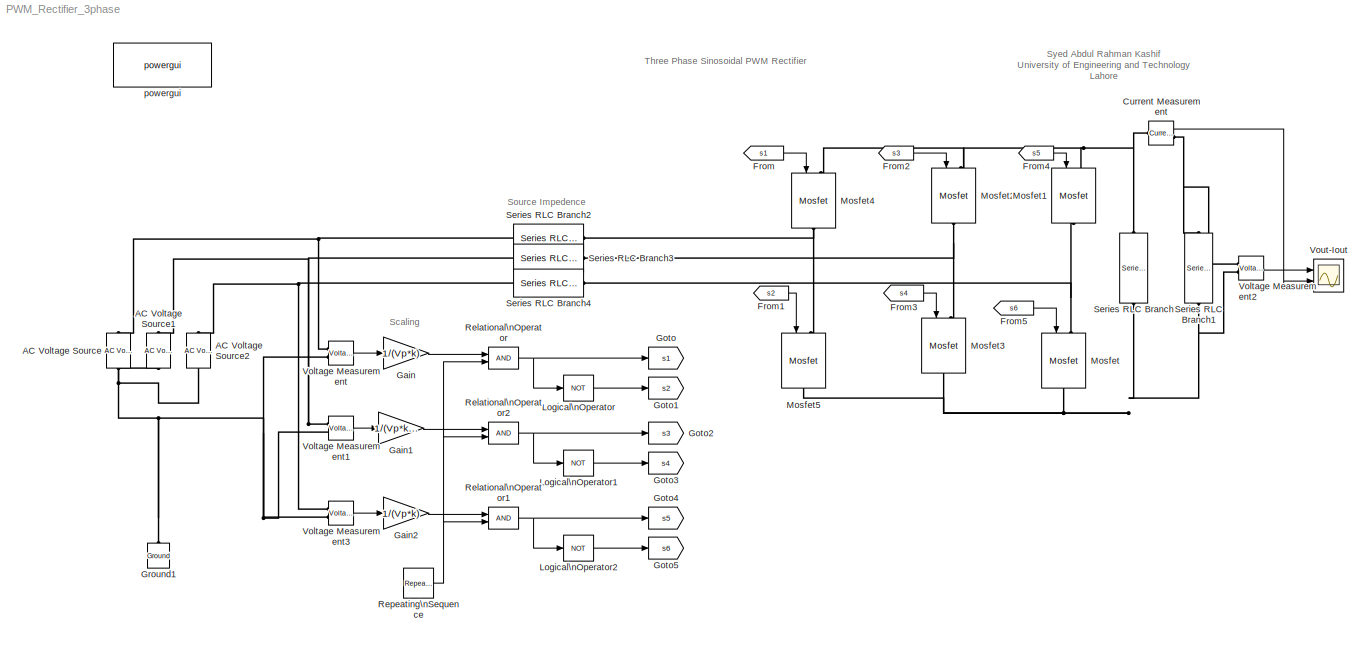
MODEL PWM_Rectifier_3phase
KIND model
CONFIG InitFcn = clear;\nclc;\nf=50;\nVp=110;\nfs=10e3;\nk=1.2;
BLOCK [Reference] AC Voltage Source  REF=powerlib/Electrical\nSources/AC Voltage Source
  Amplitude = Vp
  DialogController = POWERSYS.PowerSysDialog
  Frequency = f
  FunctionWithSeparateData = off
  Measurements = None
  Phase = 0
  Ports = [0, 0, 0, 0, 0, 1, 1]
  RTWMemSecDataConstants = Inherit from model
  RTWMemSecDataInternal = Inherit from model
  RTWMemSecDataParameters = Inherit from model
  RTWMemSecFuncExecute = Inherit from model
  RTWMemSecFuncInitTerm = Inherit from model
  SID = 102
  SampleTime = 0
  ShowPortLabels = FromPortIcon
  SourceBlock = powerlib/Electrical\nSources/AC Voltage Source
  SourceType = AC Voltage Source
  SystemSampleTime = -1
BLOCK [Reference] AC Voltage Source1  REF=powerlib/Electrical\nSources/AC Voltage Source
  Amplitude = Vp
  DialogController = POWERSYS.PowerSysDialog
  Frequency = f
  FunctionWithSeparateData = off
  Measurements = None
  Phase = 240
  Ports = [0, 0, 0, 0, 0, 1, 1]
  RTWMemSecDataConstants = Inherit from model
  RTWMemSecDataInternal = Inherit from model
  RTWMemSecDataParameters = Inherit from model
  RTWMemSecFuncExecute = Inherit from model
  RTWMemSecFuncInitTerm = Inherit from model
  SID = 103
  SampleTime = 0
  ShowPortLabels = FromPortIcon
  SourceBlock = powerlib/Electrical\nSources/AC Voltage Source
  SourceType = AC Voltage Source
  SystemSampleTime = -1
BLOCK [Reference] AC Voltage Source2  REF=powerlib/Electrical\nSources/AC Voltage Source
  Amplitude = Vp
  DialogController = POWERSYS.PowerSysDialog
  Frequency = f
  FunctionWithSeparateData = off
  Measurements = None
  Phase = 120
  Ports = [0, 0, 0, 0, 0, 1, 1]
  RTWMemSecDataConstants = Inherit from model
  RTWMemSecDataInternal = Inherit from model
  RTWMemSecDataParameters = Inherit from model
  RTWMemSecFuncExecute = Inherit from model
  RTWMemSecFuncInitTerm = Inherit from model
  SID = 104
  SampleTime = 0
  ShowPortLabels = FromPortIcon
  SourceBlock = powerlib/Electrical\nSources/AC Voltage Source
  SourceType = AC Voltage Source
  SystemSampleTime = -1
BLOCK [Reference] Current Measurement  REF=powerlib/Measurements/Current Measurement
  DialogController = POWERSYS.PowerSysDialog
  FunctionWithSeparateData = off
  OutputType = Complex
  PSBequivalent = 0
  PhasorSimulation = off
  Ports = [0, 1, 0, 0, 0, 1, 1]
  RTWMemSecDataConstants = Inherit from model
  RTWMemSecDataInternal = Inherit from model
  RTWMemSecDataParameters = Inherit from model
  RTWMemSecFuncExecute = Inherit from model
  RTWMemSecFuncInitTerm = Inherit from model
  SID = 134
  ShowPortLabels = FromPortIcon
  SourceBlock = powerlib/Measurements/Current Measurement
  SourceType = Current Measurement
  SystemSampleTime = -1
BLOCK [From] From
  CloseFcn = tagdialog Close
  GotoTag = s1
  SID = 41
BLOCK [From] From1
  CloseFcn = tagdialog Close
  GotoTag = s2
  SID = 42
BLOCK [From] From2
  CloseFcn = tagdialog Close
  GotoTag = s3
  SID = 43
BLOCK [From] From3
  CloseFcn = tagdialog Close
  GotoTag = s4
  SID = 44
BLOCK [From] From4
  CloseFcn = tagdialog Close
  GotoTag = s5
  SID = 45
BLOCK [From] From5
  CloseFcn = tagdialog Close
  GotoTag = s6
  SID = 46
BLOCK [Gain] Gain
  Gain = 1/(Vp*k)
  OutDataType = fixdt(1, 16)
  OutDataTypeMode = Inherit via internal rule
  OutDataTypeStr = Inherit: Inherit via internal rule
  OutScaling = 2^0
  ParamDataTypeStr = Inherit: Inherit via internal rule
  ParameterDataType = fixdt(1, 16)
  ParameterDataTypeMode = Inherit via internal rule
  ParameterScaling = 2^0
  SID = 126
  SaturateOnIntegerOverflow = off
BLOCK [Gain] Gain1
  Gain = 1/(Vp*k)
  OutDataType = fixdt(1, 16)
  OutDataTypeMode = Inherit via internal rule
  OutDataTypeStr = Inherit: Inherit via internal rule
  OutScaling = 2^0
  ParamDataTypeStr = Inherit: Inherit via internal rule
  ParameterDataType = fixdt(1, 16)
  ParameterDataTypeMode = Inherit via internal rule
  ParameterScaling = 2^0
  SID = 127
  SaturateOnIntegerOverflow = off
BLOCK [Gain] Gain2
  Gain = 1/(Vp*k)
  OutDataType = fixdt(1, 16)
  OutDataTypeMode = Inherit via internal rule
  OutDataTypeStr = Inherit: Inherit via internal rule
  OutScaling = 2^0
  ParamDataTypeStr = Inherit: Inherit via internal rule
  ParameterDataType = fixdt(1, 16)
  ParameterDataTypeMode = Inherit via internal rule
  ParameterScaling = 2^0
  SID = 128
  SaturateOnIntegerOverflow = off
BLOCK [Goto] Goto
  GotoTag = s1
  SID = 114
  TagVisibility = local
BLOCK [Goto] Goto1
  GotoTag = s2
  SID = 115
  TagVisibility = local
BLOCK [Goto] Goto2
  GotoTag = s3
  SID = 119
  TagVisibility = local
BLOCK [Goto] Goto3
  GotoTag = s4
  SID = 120
  TagVisibility = local
BLOCK [Goto] Goto4
  GotoTag = s5
  SID = 122
  TagVisibility = local
BLOCK [Goto] Goto5
  GotoTag = s6
  SID = 123
  TagVisibility = local
BLOCK [Reference] Ground1  REF=powerlib/Elements/Ground
  DialogController = POWERSYS.PowerSysDialog
  LConnTagsString = a
  LeftPortType = p1
  PhysicalDomain = powersysdomain
  Ports = [0, 0, 0, 0, 0, 1]
  RightPortType = p1
  SID = 105
  SourceBlock = powerlib/Elements/Ground
  SourceType = Ground
  SubClassName = unknown
BLOCK [Logic] Logical\nOperator
  AllPortsSameDT = off
  LogicDataType = fixdt(0, 8)
  Operator = NOT
  OutDataTypeMode = boolean
  OutDataTypeStr = boolean
  Ports = [1, 1]
  SID = 113
BLOCK [Logic] Logical\nOperator1
  AllPortsSameDT = off
  LogicDataType = fixdt(0, 8)
  Operator = NOT
  OutDataTypeMode = boolean
  OutDataTypeStr = boolean
  Ports = [1, 1]
  SID = 121
BLOCK [Logic] Logical\nOperator2
  AllPortsSameDT = off
  LogicDataType = fixdt(0, 8)
  Operator = NOT
  OutDataTypeMode = boolean
  OutDataTypeStr = boolean
  Ports = [1, 1]
  SID = 124
BLOCK [Reference] Mosfet  REF=powerlib/Power\nElectronics/Mosfet
  Cs = inf
  DialogController = POWERSYS.PowerSysDialog
  FunctionWithSeparateData = off
  IC = 0
  Lon = 0
  Measurements = off
  Ports = [1, 0, 0, 0, 0, 1, 1]
  RTWMemSecDataConstants = Inherit from model
  RTWMemSecDataInternal = Inherit from model
  RTWMemSecDataParameters = Inherit from model
  RTWMemSecFuncExecute = Inherit from model
  RTWMemSecFuncInitTerm = Inherit from model
  Rd = 0.01
  Ron = 0.1
  Rs = 1e5
  SID = 58
  ShowPortLabels = FromPortIcon
  SourceBlock = powerlib/Power\nElectronics/Mosfet
  SourceType = Mosfet
  SystemSampleTime = -1
  Vfd = 0
BLOCK [Reference] Mosfet1  REF=powerlib/Power\nElectronics/Mosfet
  Cs = inf
  DialogController = POWERSYS.PowerSysDialog
  FunctionWithSeparateData = off
  IC = 0
  Lon = 0
  Measurements = off
  Ports = [1, 0, 0, 0, 0, 1, 1]
  RTWMemSecDataConstants = Inherit from model
  RTWMemSecDataInternal = Inherit from model
  RTWMemSecDataParameters = Inherit from model
  RTWMemSecFuncExecute = Inherit from model
  RTWMemSecFuncInitTerm = Inherit from model
  Rd = 0.01
  Ron = 0.1
  Rs = 1e5
  SID = 59
  ShowPortLabels = FromPortIcon
  SourceBlock = powerlib/Power\nElectronics/Mosfet
  SourceType = Mosfet
  SystemSampleTime = -1
  Vfd = 0
BLOCK [Reference] Mosfet2  REF=powerlib/Power\nElectronics/Mosfet
  Cs = inf
  DialogController = POWERSYS.PowerSysDialog
  FunctionWithSeparateData = off
  IC = 0
  Lon = 0
  Measurements = off
  Ports = [1, 0, 0, 0, 0, 1, 1]
  RTWMemSecDataConstants = Inherit from model
  RTWMemSecDataInternal = Inherit from model
  RTWMemSecDataParameters = Inherit from model
  RTWMemSecFuncExecute = Inherit from model
  RTWMemSecFuncInitTerm = Inherit from model
  Rd = 0.01
  Ron = 0.1
  Rs = 1e5
  SID = 60
  ShowPortLabels = FromPortIcon
  SourceBlock = powerlib/Power\nElectronics/Mosfet
  SourceType = Mosfet
  SystemSampleTime = -1
  Vfd = 0
BLOCK [Reference] Mosfet3  REF=powerlib/Power\nElectronics/Mosfet
  Cs = inf
  DialogController = POWERSYS.PowerSysDialog
  FunctionWithSeparateData = off
  IC = 0
  Lon = 0
  Measurements = off
  Ports = [1, 0, 0, 0, 0, 1, 1]
  RTWMemSecDataConstants = Inherit from model
  RTWMemSecDataInternal = Inherit from model
  RTWMemSecDataParameters = Inherit from model
  RTWMemSecFuncExecute = Inherit from model
  RTWMemSecFuncInitTerm = Inherit from model
  Rd = 0.01
  Ron = 0.1
  Rs = 1e5
  SID = 61
  ShowPortLabels = FromPortIcon
  SourceBlock = powerlib/Power\nElectronics/Mosfet
  SourceType = Mosfet
  SystemSampleTime = -1
  Vfd = 0
BLOCK [Reference] Mosfet4  REF=powerlib/Power\nElectronics/Mosfet
  Cs = inf
  DialogController = POWERSYS.PowerSysDialog
  FunctionWithSeparateData = off
  IC = 0
  Lon = 0
  Measurements = off
  Ports = [1, 0, 0, 0, 0, 1, 1]
  RTWMemSecDataConstants = Inherit from model
  RTWMemSecDataInternal = Inherit from model
  RTWMemSecDataParameters = Inherit from model
  RTWMemSecFuncExecute = Inherit from model
  RTWMemSecFuncInitTerm = Inherit from model
  Rd = 0.01
  Ron = 0.1
  Rs = 1e5
  SID = 62
  ShowPortLabels = FromPortIcon
  SourceBlock = powerlib/Power\nElectronics/Mosfet
  SourceType = Mosfet
  SystemSampleTime = -1
  Vfd = 0
BLOCK [Reference] Mosfet5  REF=powerlib/Power\nElectronics/Mosfet
  Cs = inf
  DialogController = POWERSYS.PowerSysDialog
  FunctionWithSeparateData = off
  IC = 0
  Lon = 0
  Measurements = off
  Ports = [1, 0, 0, 0, 0, 1, 1]
  RTWMemSecDataConstants = Inherit from model
  RTWMemSecDataInternal = Inherit from model
  RTWMemSecDataParameters = Inherit from model
  RTWMemSecFuncExecute = Inherit from model
  RTWMemSecFuncInitTerm = Inherit from model
  Rd = 0.01
  Ron = 0.1
  Rs = 1e5
  SID = 63
  ShowPortLabels = FromPortIcon
  SourceBlock = powerlib/Power\nElectronics/Mosfet
  SourceType = Mosfet
  SystemSampleTime = -1
  Vfd = 0
BLOCK [RelationalOperator] Relational\nOperator
  InputSameDT = off
  LogicDataType = fixdt(0, 8)
  LogicOutDataTypeMode = boolean
  OutDataTypeStr = boolean
  Ports = [2, 1]
  SID = 109
BLOCK [RelationalOperator] Relational\nOperator1
  InputSameDT = off
  LogicDataType = fixdt(0, 8)
  LogicOutDataTypeMode = boolean
  OutDataTypeStr = boolean
  Ports = [2, 1]
  SID = 110
BLOCK [RelationalOperator] Relational\nOperator2
  InputSameDT = off
  LogicDataType = fixdt(0, 8)
  LogicOutDataTypeMode = boolean
  OutDataTypeStr = boolean
  Ports = [2, 1]
  SID = 111
BLOCK [Reference] Repeating\nSequence  REF=simulink/Sources/Repeating\nSequence
  FunctionWithSeparateData = off
  Ports = [0, 1]
  RTWMemSecDataConstants = Inherit from model
  RTWMemSecDataInternal = Inherit from model
  RTWMemSecDataParameters = Inherit from model
  RTWMemSecFuncExecute = Inherit from model
  RTWMemSecFuncInitTerm = Inherit from model
  SID = 112
  ShowPortLabels = FromPortIcon
  SourceBlock = simulink/Sources/Repeating\nSequence
  SourceType = Repeating table
  SystemSampleTime = -1
  rep_seq_t = [0 0.25/fs 0.5/fs 0.75/fs 1/fs]
  rep_seq_y = [0 -1 0 1 0]
BLOCK [Reference] Series RLC Branch  REF=powerlib/Elements/Series RLC Branch
  BranchType = C
  Capacitance = 470e-6
  DialogController = POWERSYS.PowerSysDialog
  Inductance = 1e-3
  InitialCurrent = 0
  InitialVoltage = 0
  LConnTagsString = __new0
  LeftPortType = p1
  Measurements = None
  PhysicalDomain = powersysdomain
  Ports = [0, 0, 0, 0, 0, 1, 1]
  RConnTagsString = __new0
  Resistance = 5
  RightPortType = p1
  SID = 99
  SetiL0 = off
  Setx0 = off
  SourceBlock = powerlib/Elements/Series RLC Branch
  SourceType = Series RLC Branch
  SubClassName = unknown
BLOCK [Reference] Series RLC Branch1  REF=powerlib/Elements/Series RLC Branch
  BranchType = RL
  Capacitance = 200e-6
  DialogController = POWERSYS.PowerSysDialog
  Inductance = 1e-3
  InitialCurrent = 0
  InitialVoltage = 0
  LConnTagsString = __new0
  LeftPortType = p1
  Measurements = None
  PhysicalDomain = powersysdomain
  Ports = [0, 0, 0, 0, 0, 1, 1]
  RConnTagsString = __new0
  Resistance = 5
  RightPortType = p1
  SID = 100
  SetiL0 = off
  Setx0 = off
  SourceBlock = powerlib/Elements/Series RLC Branch
  SourceType = Series RLC Branch
  SubClassName = unknown
BLOCK [Reference] Series RLC Branch2  REF=powerlib/Elements/Series RLC Branch
  BranchType = RL
  Capacitance = 200e-6
  DialogController = POWERSYS.PowerSysDialog
  Inductance = 1e-3
  InitialCurrent = 0
  InitialVoltage = 0
  LConnTagsString = __new0
  LeftPortType = p1
  Measurements = None
  PhysicalDomain = powersysdomain
  Ports = [0, 0, 0, 0, 0, 1, 1]
  RConnTagsString = __new0
  Resistance = 0.5
  RightPortType = p1
  SID = 130
  SetiL0 = off
  Setx0 = off
  SourceBlock = powerlib/Elements/Series RLC Branch
  SourceType = Series RLC Branch
  SubClassName = unknown
BLOCK [Reference] Series RLC Branch3  REF=powerlib/Elements/Series RLC Branch
  BranchType = RL
  Capacitance = 200e-6
  DialogController = POWERSYS.PowerSysDialog
  Inductance = 1e-3
  InitialCurrent = 0
  InitialVoltage = 0
  LConnTagsString = __new0
  LeftPortType = p1
  Measurements = None
  PhysicalDomain = powersysdomain
  Ports = [0, 0, 0, 0, 0, 1, 1]
  RConnTagsString = __new0
  Resistance = 0.5
  RightPortType = p1
  SID = 131
  SetiL0 = off
  Setx0 = off
  SourceBlock = powerlib/Elements/Series RLC Branch
  SourceType = Series RLC Branch
  SubClassName = unknown
BLOCK [Reference] Series RLC Branch4  REF=powerlib/Elements/Series RLC Branch
  BranchType = RL
  Capacitance = 200e-6
  DialogController = POWERSYS.PowerSysDialog
  Inductance = 1e-3
  InitialCurrent = 0
  InitialVoltage = 0
  LConnTagsString = __new0
  LeftPortType = p1
  Measurements = None
  PhysicalDomain = powersysdomain
  Ports = [0, 0, 0, 0, 0, 1, 1]
  RConnTagsString = __new0
  Resistance = 0.5
  RightPortType = p1
  SID = 132
  SetiL0 = off
  Setx0 = off
  SourceBlock = powerlib/Elements/Series RLC Branch
  SourceType = Series RLC Branch
  SubClassName = unknown
BLOCK [Reference] Voltage Measurement  REF=powerlib/Measurements/Voltage Measurement
  DialogController = POWERSYS.PowerSysDialog
  FunctionWithSeparateData = off
  OutputType = Complex
  PSBequivalent = 0
  PhasorSimulation = off
  Ports = [0, 1, 0, 0, 0, 2]
  RTWMemSecDataConstants = Inherit from model
  RTWMemSecDataInternal = Inherit from model
  RTWMemSecDataParameters = Inherit from model
  RTWMemSecFuncExecute = Inherit from model
  RTWMemSecFuncInitTerm = Inherit from model
  SID = 106
  ShowPortLabels = FromPortIcon
  SourceBlock = powerlib/Measurements/Voltage Measurement
  SourceType = Voltage Measurement
  SystemSampleTime = -1
BLOCK [Reference] Voltage Measurement1  REF=powerlib/Measurements/Voltage Measurement
  DialogController = POWERSYS.PowerSysDialog
  FunctionWithSeparateData = off
  OutputType = Complex
  PSBequivalent = 0
  PhasorSimulation = off
  Ports = [0, 1, 0, 0, 0, 2]
  RTWMemSecDataConstants = Inherit from model
  RTWMemSecDataInternal = Inherit from model
  RTWMemSecDataParameters = Inherit from model
  RTWMemSecFuncExecute = Inherit from model
  RTWMemSecFuncInitTerm = Inherit from model
  SID = 107
  ShowPortLabels = FromPortIcon
  SourceBlock = powerlib/Measurements/Voltage Measurement
  SourceType = Voltage Measurement
  SystemSampleTime = -1
BLOCK [Reference] Voltage Measurement2  REF=powerlib/Measurements/Voltage Measurement
  DialogController = POWERSYS.PowerSysDialog
  FunctionWithSeparateData = off
  OutputType = Complex
  PSBequivalent = 0
  PhasorSimulation = off
  Ports = [0, 1, 0, 0, 0, 2]
  RTWMemSecDataConstants = Inherit from model
  RTWMemSecDataInternal = Inherit from model
  RTWMemSecDataParameters = Inherit from model
  RTWMemSecFuncExecute = Inherit from model
  RTWMemSecFuncInitTerm = Inherit from model
  SID = 101
  ShowPortLabels = FromPortIcon
  SourceBlock = powerlib/Measurements/Voltage Measurement
  SourceType = Voltage Measurement
  SystemSampleTime = -1
BLOCK [Reference] Voltage Measurement3  REF=powerlib/Measurements/Voltage Measurement
  DialogController = POWERSYS.PowerSysDialog
  FunctionWithSeparateData = off
  OutputType = Complex
  PSBequivalent = 0
  PhasorSimulation = off
  Ports = [0, 1, 0, 0, 0, 2]
  RTWMemSecDataConstants = Inherit from model
  RTWMemSecDataInternal = Inherit from model
  RTWMemSecDataParameters = Inherit from model
  RTWMemSecFuncExecute = Inherit from model
  RTWMemSecFuncInitTerm = Inherit from model
  SID = 108
  ShowPortLabels = FromPortIcon
  SourceBlock = powerlib/Measurements/Voltage Measurement
  SourceType = Voltage Measurement
  SystemSampleTime = -1
BLOCK [Scope] Vout-Iout
  DataFormat = StructureWithTime
  Floating = off
  MaxDataPoints = 5000000
  NumInputPorts = 2
  Ports = [2]
  SID = 66
  SampleInput = on
  SampleTime = 2e-6
  SaveName = Vout
  YMax = 210~40
  YMin = 0~0
  ZoomMode = yonly
BLOCK [Reference] powergui  REF=powerlib/powergui
  DisableRonSwitches = off
  DisableSnubberDevices = off
  DisableVfSwitches = off
  DisplayEquations = off
  DisplayStyle = 1
  EnableUseOfTLC = off
  Frange = [0:2:500]
  FreqAxis = off
  FunctionMessages = off
  FunctionWithSeparateData = off
  HookPort = off
  Interpol = off
  MaxFrequency = 1000
  Ports = []
  Priority = 1
  RTWMemSecDataConstants = Inherit from model
  RTWMemSecDataInternal = Inherit from model
  RTWMemSecDataParameters = Inherit from model
  RTWMemSecFuncExecute = Inherit from model
  RTWMemSecFuncInitTerm = Inherit from model
  RestoreLinks = warning
  RmsSteady = 1
  SID = 125
  SPID = off
  SampleTime = 2e-6
  ShowGrid = off
  ShowPortLabels = FromPortIcon
  SourceBlock = powerlib/powergui
  SourceType = PSB option menu block
  StartTime = 0.0
  SwTol = 0
  SystemSampleTime = -1
  Ts = 0
  UserData = DataTag0
  UserDataPersistent = on
  Xlog = on
  Ylog = off
  ZoomFFT = on
  cycles = 1
  display = off
  echomessages = off
  frequency = 60
  frequencyindice = 50
  frequencyindicesteady = 1
  fundamental = 60
  methode = off
  save = off
  variable = ZData
  x0status = blocks
ANNOTATION (root): Scaling
ANNOTATION (root): Source Impedence
ANNOTATION (root): Syed Abdul Rahman Kashif\nUniversity of Engineering and Technology \nLahore
ANNOTATION (root): Three Phase Sinosoidal PWM Rectifier
LINE Current Measurement:1 -> Vout-Iout:2
LINE From1:1 -> Mosfet5:1
LINE From2:1 -> Mosfet2:1
LINE From3:1 -> Mosfet3:1
LINE From4:1 -> Mosfet1:1
LINE From5:1 -> Mosfet:1
LINE From:1 -> Mosfet4:1
LINE Gain1:1 -> Relational\nOperator2:1
LINE Gain2:1 -> Relational\nOperator1:1
LINE Gain:1 -> Relational\nOperator:1
LINE Logical\nOperator1:1 -> Goto3:1
LINE Logical\nOperator2:1 -> Goto5:1
LINE Logical\nOperator:1 -> Goto1:1
NET Relational\nOperator1:1 -> Goto4:1, Logical\nOperator2:1
NET Relational\nOperator2:1 -> Goto2:1, Logical\nOperator1:1
NET Relational\nOperator:1 -> Goto:1, Logical\nOperator:1
NET Repeating\nSequence:1 -> Relational\nOperator1:2, Relational\nOperator2:2, Relational\nOperator:2
LINE Voltage Measurement1:1 -> Gain1:1
LINE Voltage Measurement2:1 -> Vout-Iout:1
LINE Voltage Measurement3:1 -> Gain2:1
LINE Voltage Measurement:1 -> Gain:1
PNET net1: AC Voltage Source1:LConn1 -- AC Voltage Source2:LConn1 -- AC Voltage Source:LConn1 -- Ground1:LConn1 -- Voltage Measurement1:LConn2 -- Voltage Measurement3:LConn2 -- Voltage Measurement:LConn2
PNET net2: AC Voltage Source1:RConn1 -- Series RLC Branch3:RConn1 -- Voltage Measurement1:LConn1
PNET net3: AC Voltage Source2:RConn1 -- Series RLC Branch4:RConn1 -- Voltage Measurement3:LConn1
PNET net4: AC Voltage Source:RConn1 -- Series RLC Branch2:RConn1 -- Voltage Measurement:LConn1
PNET net5: Current Measurement:LConn1 -- Mosfet1:LConn1 -- Mosfet2:LConn1 -- Mosfet4:LConn1 -- Series RLC Branch:LConn1
PNET net6: Current Measurement:RConn1 -- Series RLC Branch1:LConn1 -- Voltage Measurement2:LConn1
PNET net7: Mosfet1:RConn1 -- Mosfet:LConn1 -- Series RLC Branch4:LConn1
PNET net8: Mosfet2:RConn1 -- Mosfet3:LConn1 -- Series RLC Branch3:LConn1
PNET net9: Mosfet3:RConn1 -- Mosfet5:RConn1 -- Mosfet:RConn1 -- Series RLC Branch1:RConn1 -- Series RLC Branch:RConn1 -- Voltage Measurement2:LConn2
PNET net10: Mosfet4:RConn1 -- Mosfet5:LConn1 -- Series RLC Branch2:LConn1
note: NET lines group one-source signal fan-out (src -> all destinations, sorted); 1:1 wires keep LINE; PNET lines group multi-terminal physical nets as a canonical sorted terminal list (undirected conserving connections); 2-terminal nets keep the pairwise PLINE form
